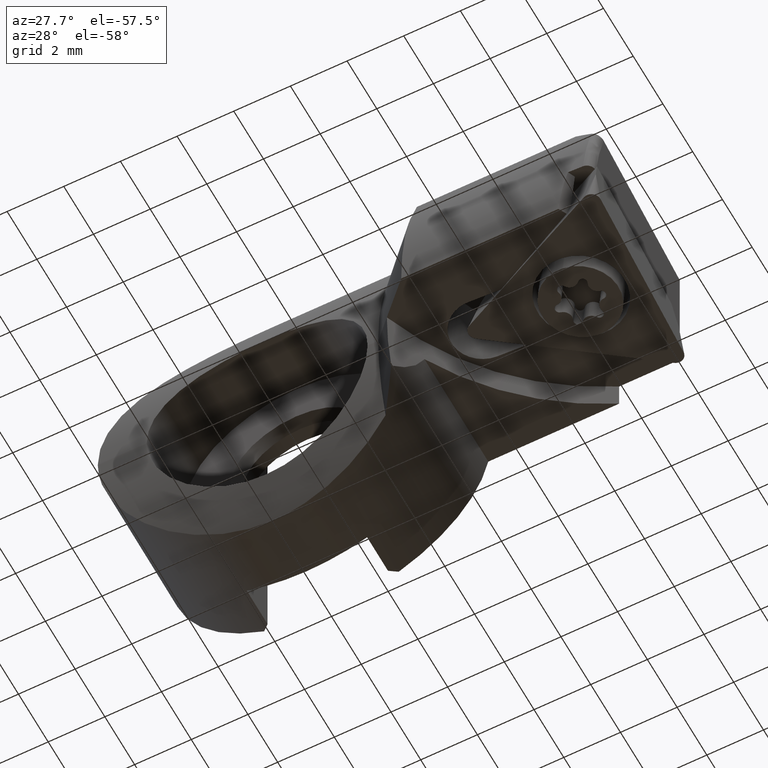
[diagram: clean part render]
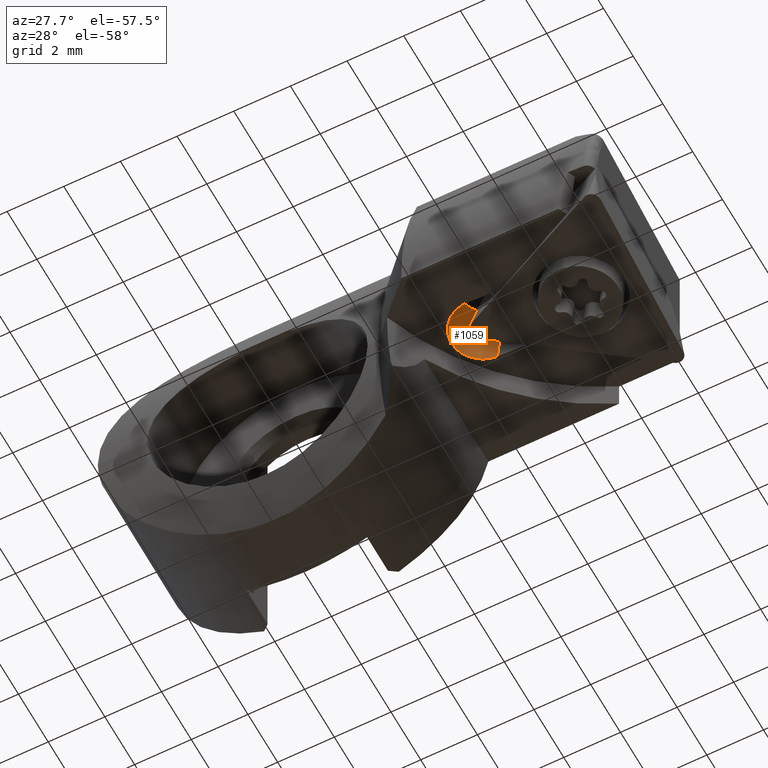
[diagram: same view with one face highlighted and labeled with its STEP entity id]
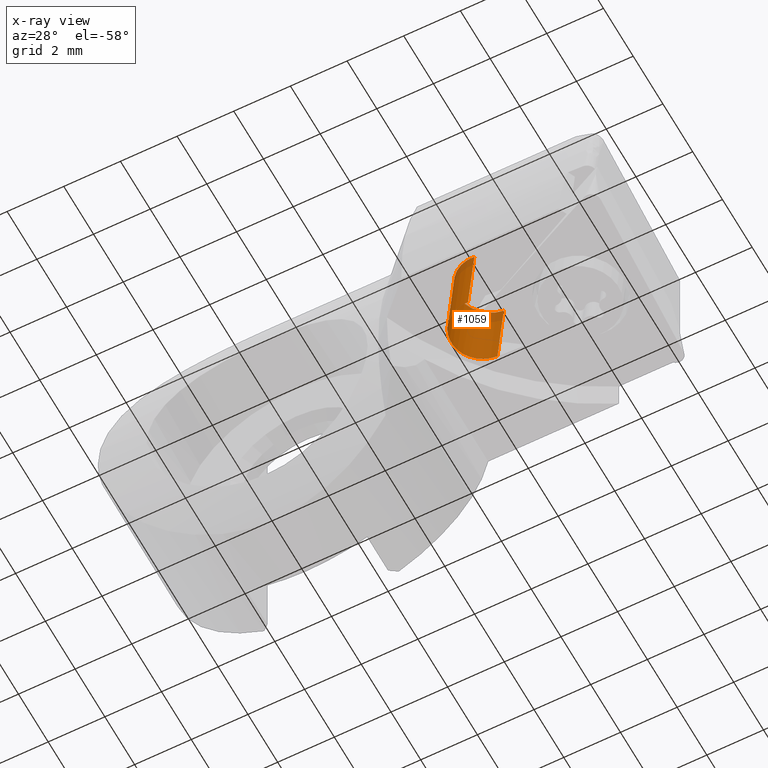
[diagram: x-ray of the same camera — body ghosted, the highlighted face saturated]
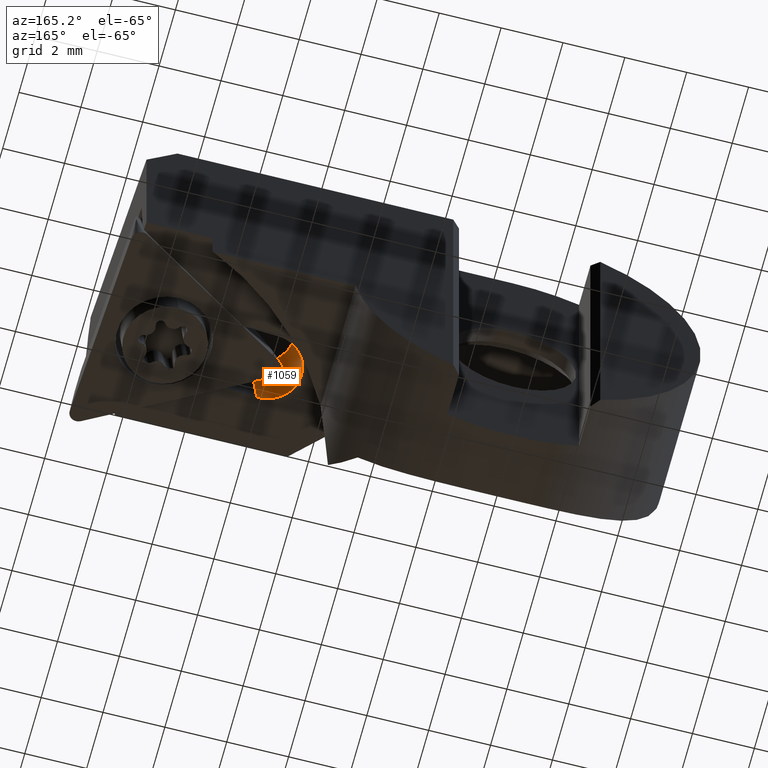
[diagram: same view with one face highlighted and labeled with its STEP entity id]
A machine part, auxiliary view. The second image highlights one B-rep face of the part: STEP entity #1059.
The next image is the same camera in x-ray: the body ghosted, the highlighted face saturated — about 13% of this face is hidden behind the body in this view.
A second angle (auxiliary view) of the same face is appended — the face is thin or edge-on in the first view.
In plain terms, the highlighted cylindrical surface (edge-blend (fillet) strip) has radius 1.1 mm, axis along (0.087, 0.0046, 0.9962).
Its self-contained STEP definition (entity closure, byte-faithful):
#669=EDGE_CURVE('NONE',#1279,#1263,#1674,.F.);
#733=VERTEX_POINT('NONE',#1742);
#897=EDGE_CURVE('NONE',#733,#1279,#1921,.F.);
#1059=ADVANCED_FACE('NONE',(#2103),#2104,.F.);
#1093=EDGE_CURVE('NONE',#1455,#1263,#2142,.F.);
#1263=VERTEX_POINT('NONE',#2331);
#1279=VERTEX_POINT('NONE',#2347);
#1349=EDGE_CURVE('NONE',#733,#1455,#2431,.F.);
#1455=VERTEX_POINT('NONE',#2545);
#1674=CIRCLE('',#2957,1.1);
#1742=CARTESIAN_POINT('',(7.42135308737987,-4.95624402414584,-8.95228656442381E-016));
#1921=LINE('',#3828,#3829);
#2103=FACE_OUTER_BOUND('',#4154,.T.);
#2104=CYLINDRICAL_SURFACE('',#4155,1.1);
#2142=LINE('',#4208,#4209);
#2331=CARTESIAN_POINT('',(7.52488107241784,-2.74779919116093,2.5028062705714));
#2347=CARTESIAN_POINT('',(7.64002017615232,-4.94478416762099,2.5028062705714));
#2431=ELLIPSE('',#4635,1.10420182129768,1.1);
#2545=CARTESIAN_POINT('',(7.3062139836454,-2.75925904768578,-8.81128182957869E-016));
#2957=AXIS2_PLACEMENT_3D('',#5044,#5045,#5046);
#3828=CARTESIAN_POINT('',(6.8994290131248,-4.98359690583188,-5.97380636080613));
#3829=VECTOR('',#5343,1.0);
#4154=EDGE_LOOP('',(#5574,#5575,#5576,#5577));
#4155=AXIS2_PLACEMENT_3D('',#5578,#5579,#5580);
#4208=CARTESIAN_POINT('',(6.78428990939033,-2.78661192937182,-5.97380636080612));
#4209=VECTOR('',#5625,1.0);
#4635=AXIS2_PLACEMENT_3D('',#5992,#5993,#5994);
#5044=CARTESIAN_POINT('',(7.58245062428508,-3.84629167939097,2.5028062705714));
#5045=DIRECTION('',(0.0870362988312837,0.00456137913875908,0.996194698091746));
#5046=DIRECTION('',(-0.0523359562429437,0.998629534754574,3.65276961863406E-015));
#5343=DIRECTION('',(-0.0870362988312837,-0.00456137913875878,-0.996194698091746));
#5574=ORIENTED_EDGE('',*,*,#1349,.T.);
#5575=ORIENTED_EDGE('',*,*,#1093,.T.);
#5576=ORIENTED_EDGE('',*,*,#669,.F.);
#5577=ORIENTED_EDGE('',*,*,#897,.F.);
#5578=CARTESIAN_POINT('',(6.84185946125756,-3.88510441760185,-5.97380636080613));
#5579=DIRECTION('',(0.0870362988312837,0.00456137913875878,0.996194698091746));
#5580=DIRECTION('',(-0.0523359562429436,0.998629534754574,3.94969245523498E-015));
#5625=DIRECTION('',(-0.0870362988312837,-0.00456137913875878,-0.996194698091746));
#5992=CARTESIAN_POINT('',(7.36378353551264,-3.85775153591581,-8.88178419700125E-016));
#5993=DIRECTION('',(1.22464679914735E-016,1.26849666082294E-033,1.0));
#5994=DIRECTION('',(0.998629534754574,0.0523359562429436,-1.2229684632712E-016));